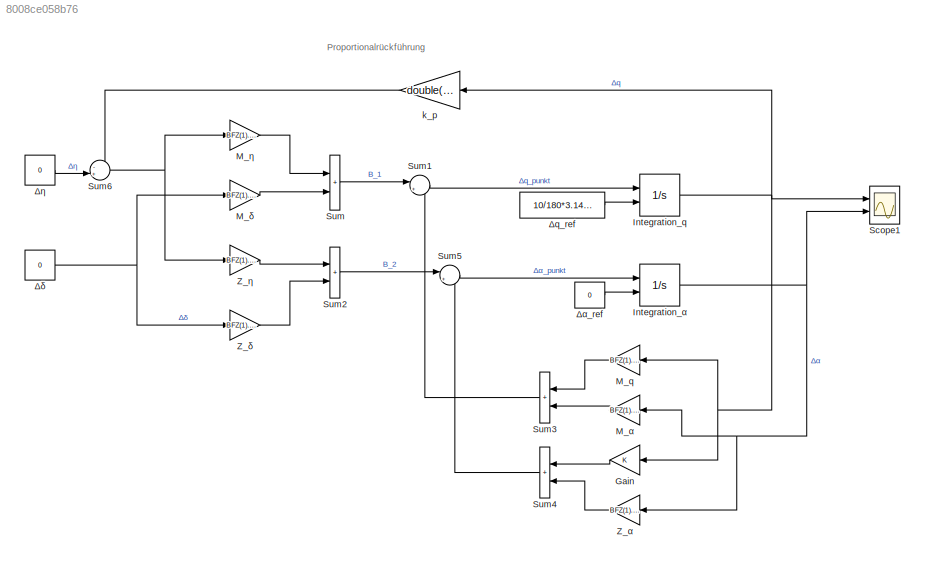
MODEL slx_8008ce058b76
KIND model
CONFIG AbsTol = auto
CONFIG EnableMultiTasking = off
CONFIG FixedStep = 0.02
CONFIG MaxStep = auto
CONFIG MinStep = auto
CONFIG RelTol = 1e-3
CONFIG SampleTimeConstraint = Unconstrained
CONFIG SolverName = ode4
CONFIG StartTime = 0.0
CONFIG StopTime = 15.0
BLOCK [Gain] Gain
BLOCK [Integrator] Integration_q
  InitialConditionSource = external
  Ports = [2, 1]
BLOCK [Integrator] Integration_α
  InitialConditionSource = external
  Ports = [2, 1]
BLOCK [Gain] M_q
  Gain = BFZ(1).M_q
BLOCK [Gain] M_α
  Gain = BFZ(1).M_alpha
BLOCK [Gain] M_δ
  Gain = BFZ(1).M_delta
BLOCK [Gain] M_η
  Gain = BFZ(1).M_eta
BLOCK [Scope] Scope1
  Floating = off
  NumInputPorts = 2
  Ports = [2]
  ScopeSpecificationString = Simulink.scopes.TimeScopeBlockCfg('CurrentConfiguration', extmgr.ConfigurationSet(extmgr.Configuration('Core','General UI',true),extmgr.Configuration('Core','Source UI',true),extmgr.Configuration('Sources','WiredSimulink',true,'DataLoggingVariableName','ScopeData1'),extmgr.Configuration('Visuals','Time Domain',true,'SerializedDisplays',{struct('MinYLimReal','-0.04589','MaxYLimReal','0.19902','YLab...<+1438ch>
BLOCK [Sum] Sum
  IconShape = rectangular
  Ports = [2, 1]
BLOCK [Sum] Sum1
  Inputs = |++
  Ports = [2, 1]
BLOCK [Sum] Sum2
  IconShape = rectangular
  Ports = [2, 1]
BLOCK [Sum] Sum3
  IconShape = rectangular
  Ports = [2, 1]
BLOCK [Sum] Sum4
  IconShape = rectangular
  Ports = [2, 1]
BLOCK [Sum] Sum5
  Inputs = |++
  Ports = [2, 1]
BLOCK [Sum] Sum6
  Inputs = -+|
  Ports = [2, 1]
BLOCK [Gain] Z_α
  Gain = BFZ(1).Z_alpha
BLOCK [Gain] Z_δ
  Gain = BFZ(1).Z_delta
BLOCK [Gain] Z_η
  Gain = BFZ(1).Z_eta
BLOCK [Gain] k_p
  Gain = double(NickD(1).k_p)
  Multiplication = Matrix(K*u) (u vector)
BLOCK [Constant] Δq_ref
  Value = 10/180*3.1415
BLOCK [Constant] Δα_ref
  Value = 0
BLOCK [Constant] Δδ
  Value = 0
BLOCK [Constant] Δη
  Value = 0
ANNOTATION (root): Proportionalrückführung
LINE Gain:1 -> Sum4:1
NET Integration_q:1 -> Gain:1, M_q:1, Scope1:1, k_p:1
NET Integration_α:1 -> M_α:1, Scope1:2, Z_α:1
LINE M_q:1 -> Sum3:1
LINE M_α:1 -> Sum3:2
LINE M_δ:1 -> Sum:2
LINE M_η:1 -> Sum:1
LINE Sum1:1 -> Integration_q:1
LINE Sum2:1 -> Sum5:1
LINE Sum3:1 -> Sum1:2
LINE Sum4:1 -> Sum5:2
LINE Sum5:1 -> Integration_α:1
NET Sum6:1 -> M_η:1, Z_η:1
LINE Sum:1 -> Sum1:1
LINE Z_α:1 -> Sum4:2
LINE Z_δ:1 -> Sum2:2
LINE Z_η:1 -> Sum2:1
LINE k_p:1 -> Sum6:1
LINE Δq_ref:1 -> Integration_q:2
LINE Δα_ref:1 -> Integration_α:2
NET Δδ:1 -> M_δ:1, Z_δ:1
LINE Δη:1 -> Sum6:2
note: NET lines group one-source signal fan-out (src -> all destinations, sorted); 1:1 wires keep LINE
